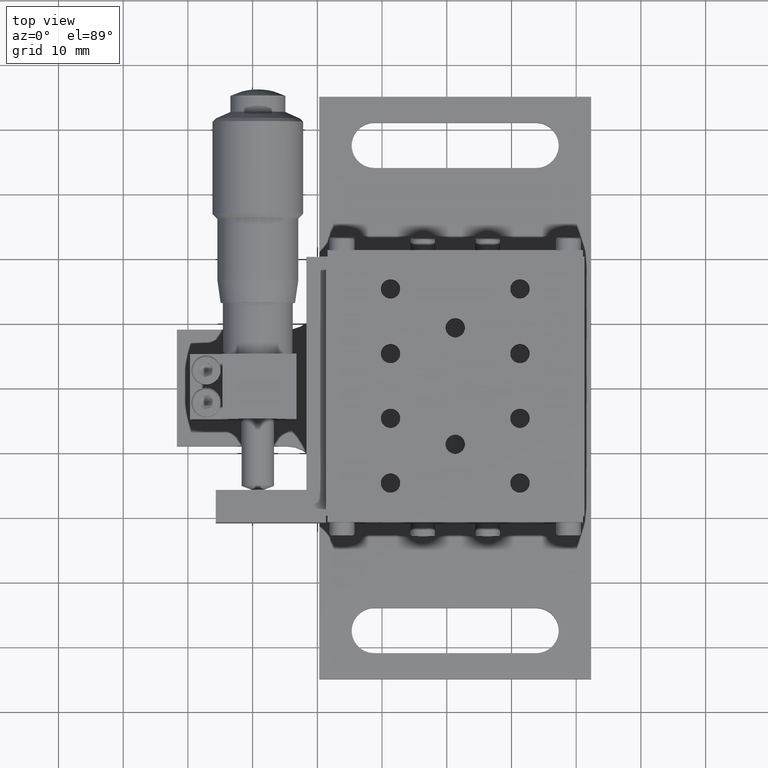
[diagram: clean part render]
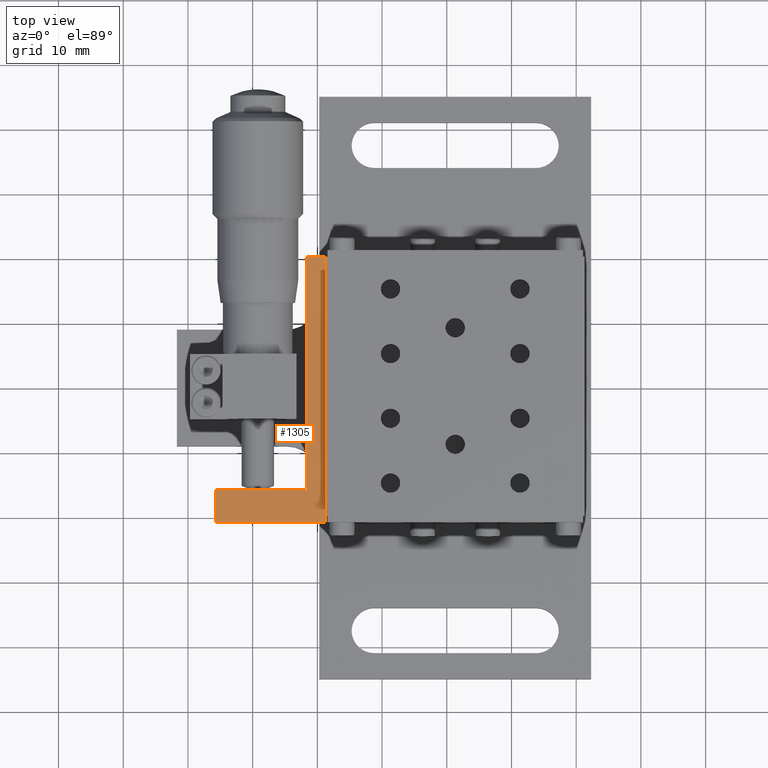
[diagram: same view with one face highlighted and labeled with its STEP entity id]
A machine part, top view. The second image highlights one B-rep face of the part: STEP entity #1305.
In plain terms, the highlighted face is a freeform B-spline surface patch.
Its self-contained STEP definition (entity closure, byte-faithful):
#381=B_SPLINE_SURFACE_WITH_KNOTS('',1,1,((#35177,#35178),(#35179,#35180)),
 .UNSPECIFIED.,.F.,.F.,.F.,(2,2),(2,2),(-16.07,1.57),(-47.42,4.42),
 .UNSPECIFIED.);
#419=B_SPLINE_SURFACE_WITH_KNOTS('',1,1,((#35329,#35330),(#35331,#35332)),
 .UNSPECIFIED.,.F.,.F.,.F.,(2,2),(2,2),(-0.32,2.32),(-4.12,44.12),
 .UNSPECIFIED.);
#421=B_SPLINE_SURFACE_WITH_KNOTS('',1,1,((#35337,#35338),(#35339,#35340)),
 .UNSPECIFIED.,.F.,.F.,.F.,(2,2),(2,2),(-1.32,13.32),(-15.52,1.52),
 .UNSPECIFIED.);
#422=B_SPLINE_SURFACE_WITH_KNOTS('',1,1,((#35341,#35342),(#35343,#35344)),
 .UNSPECIFIED.,.F.,.F.,.F.,(2,2),(2,2),(15.38,21.62),(-12.32,2.32),
 .UNSPECIFIED.);
#423=B_SPLINE_SURFACE_WITH_KNOTS('',1,1,((#35345,#35346),(#35347,#35348)),
 .UNSPECIFIED.,.F.,.F.,.F.,(2,2),(2,2),(-40.22,9.22),(-15.82,4.82),
 .UNSPECIFIED.);
#424=B_SPLINE_SURFACE_WITH_KNOTS('',1,1,((#35441,#35442),(#35443,#35444)),
 .UNSPECIFIED.,.F.,.F.,.F.,(2,2),(2,2),(-1.32,13.32),(-39.72,3.72),
 .UNSPECIFIED.);
#425=B_SPLINE_SURFACE_WITH_KNOTS('',1,1,((#35445,#35446),(#35447,#35448)),
 .UNSPECIFIED.,.F.,.F.,.F.,(2,2),(2,2),(-10.32,10.32),(-7.32,7.32),
 .UNSPECIFIED.);
#426=B_SPLINE_SURFACE_WITH_KNOTS('',1,1,((#35449,#35450),(#35451,#35452)),
 .UNSPECIFIED.,.F.,.F.,.F.,(2,2),(2,2),(-12.32,2.32),(19.78,21.22),
 .UNSPECIFIED.);
#1305=ADVANCED_FACE('',(#1926),#423,.T.);
#1926=FACE_OUTER_BOUND('',#2645,.T.);
#2645=EDGE_LOOP('',(#5608,#5609,#5610,#5611,#5612,#5613,#5614));
#5608=ORIENTED_EDGE('',*,*,#19246,.F.);
#5609=ORIENTED_EDGE('',*,*,#19332,.T.);
#5610=ORIENTED_EDGE('',*,*,#19329,.F.);
#5611=ORIENTED_EDGE('',*,*,#19330,.F.);
#5612=ORIENTED_EDGE('',*,*,#19333,.T.);
#5613=ORIENTED_EDGE('',*,*,#19334,.T.);
#5614=ORIENTED_EDGE('',*,*,#19321,.F.);
#8605=PCURVE('',#381,#11835);
#8819=PCURVE('',#419,#12049);
#8833=PCURVE('',#421,#12063);
#8834=PCURVE('',#422,#12064);
#8838=PCURVE('',#423,#12068);
#8839=PCURVE('',#423,#12069);
#8840=PCURVE('',#423,#12070);
#8841=PCURVE('',#423,#12071);
#8842=PCURVE('',#423,#12072);
#8843=PCURVE('',#423,#12073);
#8844=PCURVE('',#423,#12074);
#8872=PCURVE('',#424,#12102);
#8878=PCURVE('',#425,#12108);
#8881=PCURVE('',#426,#12111);
#11835=DEFINITIONAL_REPRESENTATION('',(#15434),#46496);
#12049=DEFINITIONAL_REPRESENTATION('',(#15666),#46496);
#12063=DEFINITIONAL_REPRESENTATION('',(#15688),#46496);
#12064=DEFINITIONAL_REPRESENTATION('',(#15690),#46496);
#12068=DEFINITIONAL_REPRESENTATION('',(#15695),#46496);
#12069=DEFINITIONAL_REPRESENTATION('',(#15697),#46496);
#12070=DEFINITIONAL_REPRESENTATION('',(#15698),#46496);
#12071=DEFINITIONAL_REPRESENTATION('',(#15699),#46496);
#12072=DEFINITIONAL_REPRESENTATION('',(#15701),#46496);
#12073=DEFINITIONAL_REPRESENTATION('',(#15703),#46496);
#12074=DEFINITIONAL_REPRESENTATION('',(#15704),#46496);
#12102=DEFINITIONAL_REPRESENTATION('',(#15740),#46496);
#12108=DEFINITIONAL_REPRESENTATION('',(#15743),#46496);
#12111=DEFINITIONAL_REPRESENTATION('',(#15746),#46496);
#15433=B_SPLINE_CURVE_WITH_KNOTS('',1,(#44570,#44571),.UNSPECIFIED.,.F.,
 .F.,(2,2),(0.,3.),.UNSPECIFIED.);
#15434=B_SPLINE_CURVE_WITH_KNOTS('',1,(#44572,#44573),.UNSPECIFIED.,.F.,
 .F.,(2,2),(0.,3.),.UNSPECIFIED.);
#15665=B_SPLINE_CURVE_WITH_KNOTS('',1,(#45261,#45262),.UNSPECIFIED.,.F.,
 .F.,(2,2),(0.,40.),.UNSPECIFIED.);
#15666=B_SPLINE_CURVE_WITH_KNOTS('',1,(#45263,#45264),.UNSPECIFIED.,.F.,
 .F.,(2,2),(0.,40.),.UNSPECIFIED.);
#15687=B_SPLINE_CURVE_WITH_KNOTS('',1,(#45305,#45306),.UNSPECIFIED.,.F.,
 .F.,(2,2),(0.,14.),.UNSPECIFIED.);
#15688=B_SPLINE_CURVE_WITH_KNOTS('',1,(#45307,#45308),.UNSPECIFIED.,.F.,
 .F.,(2,2),(0.,14.),.UNSPECIFIED.);
#15689=B_SPLINE_CURVE_WITH_KNOTS('',1,(#45309,#45310),.UNSPECIFIED.,.F.,
 .F.,(2,2),(0.,5.),.UNSPECIFIED.);
#15690=B_SPLINE_CURVE_WITH_KNOTS('',1,(#45311,#45312),.UNSPECIFIED.,.F.,
 .F.,(2,2),(0.,5.),.UNSPECIFIED.);
#15695=B_SPLINE_CURVE_WITH_KNOTS('',1,(#45321,#45322),.UNSPECIFIED.,.F.,
 .F.,(2,2),(0.,3.),.UNSPECIFIED.);
#15696=B_SPLINE_CURVE_WITH_KNOTS('',1,(#45323,#45324),.UNSPECIFIED.,.F.,
 .F.,(2,2),(-36.,0.),.UNSPECIFIED.);
#15697=B_SPLINE_CURVE_WITH_KNOTS('',1,(#45325,#45326),.UNSPECIFIED.,.F.,
 .F.,(2,2),(-36.,0.),.UNSPECIFIED.);
#15698=B_SPLINE_CURVE_WITH_KNOTS('',1,(#45327,#45328),.UNSPECIFIED.,.F.,
 .F.,(2,2),(0.,14.),.UNSPECIFIED.);
#15699=B_SPLINE_CURVE_WITH_KNOTS('',1,(#45329,#45330),.UNSPECIFIED.,.F.,
 .F.,(2,2),(0.,5.),.UNSPECIFIED.);
#15700=B_SPLINE_CURVE_WITH_KNOTS('',1,(#45331,#45332),.UNSPECIFIED.,.F.,
 .F.,(2,2),(0.,17.),.UNSPECIFIED.);
#15701=B_SPLINE_CURVE_WITH_KNOTS('',1,(#45333,#45334),.UNSPECIFIED.,.F.,
 .F.,(2,2),(0.,17.),.UNSPECIFIED.);
#15702=B_SPLINE_CURVE_WITH_KNOTS('',1,(#45335,#45336),.UNSPECIFIED.,.F.,
 .F.,(2,2),(-1.,0.),.UNSPECIFIED.);
#15703=B_SPLINE_CURVE_WITH_KNOTS('',1,(#45337,#45338),.UNSPECIFIED.,.F.,
 .F.,(2,2),(-1.,0.),.UNSPECIFIED.);
#15704=B_SPLINE_CURVE_WITH_KNOTS('',1,(#45339,#45340),.UNSPECIFIED.,.F.,
 .F.,(2,2),(0.,40.),.UNSPECIFIED.);
#15740=B_SPLINE_CURVE_WITH_KNOTS('',1,(#45451,#45452),.UNSPECIFIED.,.F.,
 .F.,(2,2),(-36.,0.),.UNSPECIFIED.);
#15743=B_SPLINE_CURVE_WITH_KNOTS('',1,(#45487,#45488),.UNSPECIFIED.,.F.,
 .F.,(2,2),(0.,17.),.UNSPECIFIED.);
#15746=B_SPLINE_CURVE_WITH_KNOTS('',1,(#45493,#45494),.UNSPECIFIED.,.F.,
 .F.,(2,2),(-1.,0.),.UNSPECIFIED.);
#17562=SURFACE_CURVE('',#15433,(#8605,#8838),.PCURVE_S1.);
#17637=SURFACE_CURVE('',#15665,(#8819,#8844),.PCURVE_S1.);
#17645=SURFACE_CURVE('',#15687,(#8833,#8840),.PCURVE_S1.);
#17646=SURFACE_CURVE('',#15689,(#8834,#8841),.PCURVE_S1.);
#17648=SURFACE_CURVE('',#15696,(#8839,#8872),.PCURVE_S1.);
#17649=SURFACE_CURVE('',#15700,(#8842,#8878),.PCURVE_S1.);
#17650=SURFACE_CURVE('',#15702,(#8843,#8881),.PCURVE_S1.);
#19246=EDGE_CURVE('',#21685,#21686,#17562,.T.);
#19321=EDGE_CURVE('',#21686,#21702,#17637,.T.);
#19329=EDGE_CURVE('',#21724,#21723,#17645,.T.);
#19330=EDGE_CURVE('',#21725,#21724,#17646,.T.);
#19332=EDGE_CURVE('',#21685,#21723,#17648,.T.);
#19333=EDGE_CURVE('',#21725,#21726,#17649,.T.);
#19334=EDGE_CURVE('',#21726,#21702,#17650,.T.);
#21685=VERTEX_POINT('',#36856);
#21686=VERTEX_POINT('',#36857);
#21702=VERTEX_POINT('',#36873);
#21723=VERTEX_POINT('',#36894);
#21724=VERTEX_POINT('',#36895);
#21725=VERTEX_POINT('',#36896);
#21726=VERTEX_POINT('',#36897);
#35177=CARTESIAN_POINT('',(-16.12,20.0746896551723,4.00470696750392));
#35178=CARTESIAN_POINT('',(35.72,20.0746896551723,4.00470696750392));
#35179=CARTESIAN_POINT('',(-16.12,20.0746896551723,21.6447069675039));
#35180=CARTESIAN_POINT('',(35.72,20.0746896551723,21.6447069675039));
#35329=CARTESIAN_POINT('',(-8.7,24.1946896551723,20.3947069675039));
#35330=CARTESIAN_POINT('',(-8.7,-24.0453103448278,20.3947069675039));
#35331=CARTESIAN_POINT('',(-8.7,24.1946896551723,17.7547069675039));
#35332=CARTESIAN_POINT('',(-8.7,-24.0453103448278,17.7547069675039));
#35337=CARTESIAN_POINT('',(-27.22,-15.9253103448278,4.75470696750392));
#35338=CARTESIAN_POINT('',(-10.18,-15.9253103448278,4.75470696750392));
#35339=CARTESIAN_POINT('',(-27.22,-15.9253103448278,19.3947069675039));
#35340=CARTESIAN_POINT('',(-10.18,-15.9253103448278,19.3947069675039));
#35341=CARTESIAN_POINT('',(-25.7,-15.3053103448277,4.75470696750392));
#35342=CARTESIAN_POINT('',(-25.7,-15.3053103448277,19.3947069675039));
#35343=CARTESIAN_POINT('',(-25.7,-21.5453103448278,4.75470696750392));
#35344=CARTESIAN_POINT('',(-25.7,-21.5453103448278,19.3947069675039));
#35345=CARTESIAN_POINT('',(-27.52,24.2946896551722,18.0747069675039));
#35346=CARTESIAN_POINT('',(-6.88,24.2946896551722,18.0747069675039));
#35347=CARTESIAN_POINT('',(-27.52,-25.1453103448278,18.0747069675039));
#35348=CARTESIAN_POINT('',(-6.88,-25.1453103448278,18.0747069675039));
#35441=CARTESIAN_POINT('',(-11.7,-19.6453103448277,4.75470696750392));
#35442=CARTESIAN_POINT('',(-11.7,23.7946896551723,4.75470696750392));
#35443=CARTESIAN_POINT('',(-11.7,-19.6453103448277,19.3947069675039));
#35444=CARTESIAN_POINT('',(-11.7,23.7946896551723,19.3947069675039));
#35445=CARTESIAN_POINT('',(-27.52,-20.9253103448278,4.75470696750392));
#35446=CARTESIAN_POINT('',(-27.52,-20.9253103448277,19.3947069675039));
#35447=CARTESIAN_POINT('',(-6.88,-20.9253103448278,4.75470696750392));
#35448=CARTESIAN_POINT('',(-6.88,-20.9253103448277,19.3947069675039));
#35449=CARTESIAN_POINT('',(-8.7,-19.7053103448277,4.75470696750392));
#35450=CARTESIAN_POINT('',(-8.7,-21.1453103448278,4.75470696750392));
#35451=CARTESIAN_POINT('',(-8.7,-19.7053103448277,19.3947069675039));
#35452=CARTESIAN_POINT('',(-8.7,-21.1453103448278,19.3947069675039));
#36856=CARTESIAN_POINT('',(-11.7,20.0746896551723,18.0747069675039));
#36857=CARTESIAN_POINT('',(-8.7,20.0746896551723,18.0747069675039));
#36873=CARTESIAN_POINT('',(-8.7,-19.9253103448278,18.0747069675039));
#36894=CARTESIAN_POINT('',(-11.7,-15.9253103448278,18.0747069675039));
#36895=CARTESIAN_POINT('',(-25.7,-15.9253103448278,18.0747069675039));
#36896=CARTESIAN_POINT('',(-25.7,-20.9253103448278,18.0747069675039));
#36897=CARTESIAN_POINT('',(-8.7,-20.9253103448278,18.0747069675039));
#44570=CARTESIAN_POINT('',(-11.7,20.0746896551723,18.0747069675039));
#44571=CARTESIAN_POINT('',(-8.7,20.0746896551723,18.0747069675039));
#44572=CARTESIAN_POINT('',(-2.,-43.));
#44573=CARTESIAN_POINT('',(-2.,-40.));
#45261=CARTESIAN_POINT('',(-8.7,20.0746896551723,18.0747069675039));
#45262=CARTESIAN_POINT('',(-8.7,-19.9253103448278,18.0747069675039));
#45263=CARTESIAN_POINT('',(2.,1.81874914434444E-15));
#45264=CARTESIAN_POINT('',(2.,40.));
#45305=CARTESIAN_POINT('',(-25.7,-15.9253103448278,18.0747069675039));
#45306=CARTESIAN_POINT('',(-11.7,-15.9253103448278,18.0747069675039));
#45307=CARTESIAN_POINT('',(12.,-14.));
#45308=CARTESIAN_POINT('',(12.,1.18329135783152E-30));
#45309=CARTESIAN_POINT('',(-25.7,-20.9253103448278,18.0747069675039));
#45310=CARTESIAN_POINT('',(-25.7,-15.9253103448278,18.0747069675039));
#45311=CARTESIAN_POINT('',(21.,1.));
#45312=CARTESIAN_POINT('',(16.,1.));
#45321=CARTESIAN_POINT('',(-36.,1.99840144432528E-15));
#45322=CARTESIAN_POINT('',(-36.,3.));
#45323=CARTESIAN_POINT('',(-11.7,20.0746896551723,18.0747069675039));
#45324=CARTESIAN_POINT('',(-11.7,-15.9253103448278,18.0747069675039));
#45325=CARTESIAN_POINT('',(-36.,1.99840144432528E-15));
#45326=CARTESIAN_POINT('',(0.,0.));
#45327=CARTESIAN_POINT('',(-7.77156117237609E-16,-14.));
#45328=CARTESIAN_POINT('',(0.,0.));
#45329=CARTESIAN_POINT('',(5.,-14.));
#45330=CARTESIAN_POINT('',(-7.77156117237609E-16,-14.));
#45331=CARTESIAN_POINT('',(-25.7,-20.9253103448278,18.0747069675039));
#45332=CARTESIAN_POINT('',(-8.7,-20.9253103448278,18.0747069675039));
#45333=CARTESIAN_POINT('',(5.,-14.));
#45334=CARTESIAN_POINT('',(5.,3.));
#45335=CARTESIAN_POINT('',(-8.7,-20.9253103448278,18.0747069675039));
#45336=CARTESIAN_POINT('',(-8.7,-19.9253103448278,18.0747069675039));
#45337=CARTESIAN_POINT('',(5.,3.));
#45338=CARTESIAN_POINT('',(4.,3.));
#45339=CARTESIAN_POINT('',(-36.,3.));
#45340=CARTESIAN_POINT('',(4.,3.));
#45451=CARTESIAN_POINT('',(12.,7.3476381229343E-16));
#45452=CARTESIAN_POINT('',(12.,-36.));
#45487=CARTESIAN_POINT('',(-8.5,6.));
#45488=CARTESIAN_POINT('',(8.5,6.));
#45493=CARTESIAN_POINT('',(1.,21.));
#45494=CARTESIAN_POINT('',(1.,20.));
#46496=(
GEOMETRIC_REPRESENTATION_CONTEXT(2)
PARAMETRIC_REPRESENTATION_CONTEXT()
REPRESENTATION_CONTEXT('pspace','')
);